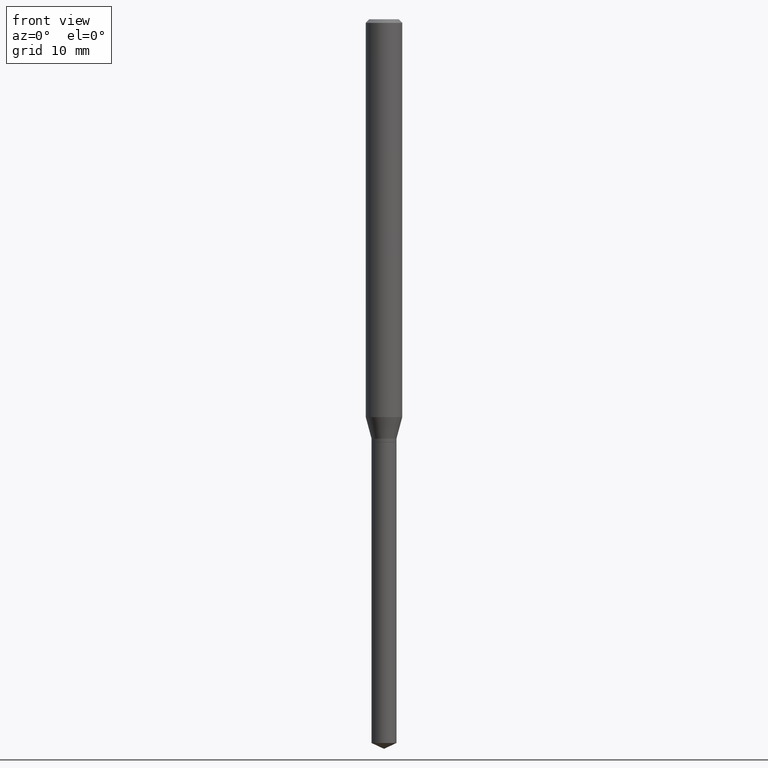
[diagram: clean part render]
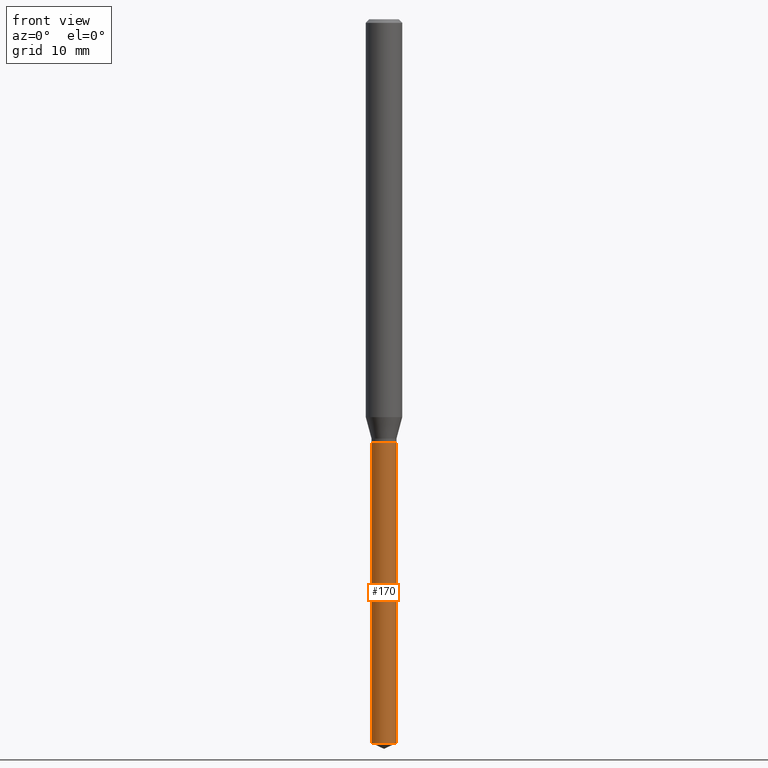
[diagram: same view with one face highlighted and labeled with its STEP entity id]
A machine part, front view. The second image highlights one B-rep face of the part: STEP entity #170.
In plain terms, the highlighted cylindrical surface (edge-blend (fillet) strip) has radius 1.0249 mm, axis along (-0, 0, 1).
Its self-contained STEP definition (entity closure, byte-faithful):
#54 = ORIENTED_EDGE ( 'NONE', *, *, #220, .F. ) ;
#67 = VECTOR ( 'NONE', #313, 39.37007874015748143 ) ;
#70 = DIRECTION ( 'NONE',  ( -2.445468806185136877E-29, 3.491481338843145188E-15, 1.000000000000000000 ) ) ;
#71 = CARTESIAN_POINT ( 'NONE',  ( 0.04034999999999999698, -5.065441126393635915E-15, -1.370100000000000318 ) ) ;
#73 = VERTEX_POINT ( 'NONE', #210 ) ;
#74 = CARTESIAN_POINT ( 'NONE',  ( 3.350536811354256393E-29, -4.783678582348994195E-15, -1.370100000000000318 ) ) ;
#85 = AXIS2_PLACEMENT_3D ( 'NONE', #265, #461, #270 ) ;
#93 = CARTESIAN_POINT ( 'NONE',  ( 0.04035000000000000392, -8.463645746625293434E-15, -2.343384485993445843 ) ) ;
#99 = ORIENTED_EDGE ( 'NONE', *, *, #365, .T. ) ;
#113 = CYLINDRICAL_SURFACE ( 'NONE', #283, 0.04034999999999999698 ) ;
#153 = FACE_OUTER_BOUND ( 'NONE', #438, .T. ) ;
#155 = CARTESIAN_POINT ( 'NONE',  ( 3.350536811354256393E-29, -4.783678582348994195E-15, -1.370100000000000318 ) ) ;
#166 = VERTEX_POINT ( 'NONE', #453 ) ;
#170 = ADVANCED_FACE ( 'NONE', ( #153 ), #113, .T. ) ;
#178 = VERTEX_POINT ( 'NONE', #486 ) ;
#193 = DIRECTION ( 'NONE',  ( 1.000000000000000000, -6.982962677686271444E-15, 0.000000000000000000 ) ) ;
#210 = CARTESIAN_POINT ( 'NONE',  ( -0.04035000000000000392, -7.895179208701451310E-15, -2.343384485993445843 ) ) ;
#218 = EDGE_CURVE ( 'NONE', #166, #178, #342, .T. ) ;
#220 = EDGE_CURVE ( 'NONE', #73, #166, #346, .T. ) ;
#226 = CIRCLE ( 'NONE', #85, 0.04034999999999999698 ) ;
#235 = DIRECTION ( 'NONE',  ( -2.445468806185136597E-29, 3.491481338843145583E-15, 1.000000000000000000 ) ) ;
#236 = EDGE_CURVE ( 'NONE', #73, #320, #226, .T. ) ;
#243 = ORIENTED_EDGE ( 'NONE', *, *, #236, .T. ) ;
#262 = DIRECTION ( 'NONE',  ( -2.445468806185136597E-29, 3.491481338843145583E-15, 1.000000000000000000 ) ) ;
#265 = CARTESIAN_POINT ( 'NONE',  ( 5.730673661395162448E-29, -8.181883202580652503E-15, -2.343384485993445843 ) ) ;
#266 = AXIS2_PLACEMENT_3D ( 'NONE', #74, #235, #193 ) ;
#270 = DIRECTION ( 'NONE',  ( 1.000000000000000000, -6.982962677686271444E-15, 0.000000000000000000 ) ) ;
#283 = AXIS2_PLACEMENT_3D ( 'NONE', #155, #262, #312 ) ;
#312 = DIRECTION ( 'NONE',  ( 1.000000000000000000, -6.982962677686271444E-15, 0.000000000000000000 ) ) ;
#313 = DIRECTION ( 'NONE',  ( -2.445468806185136877E-29, 3.491481338843145188E-15, 1.000000000000000000 ) ) ;
#320 = VERTEX_POINT ( 'NONE', #93 ) ;
#342 = CIRCLE ( 'NONE', #266, 0.04034999999999999698 ) ;
#346 = LINE ( 'NONE', #391, #403 ) ;
#365 = EDGE_CURVE ( 'NONE', #320, #178, #423, .T. ) ;
#366 = ORIENTED_EDGE ( 'NONE', *, *, #218, .F. ) ;
#391 = CARTESIAN_POINT ( 'NONE',  ( -0.04034999999999999698, -4.496974588469793791E-15, -1.370100000000000318 ) ) ;
#403 = VECTOR ( 'NONE', #70, 39.37007874015748143 ) ;
#423 = LINE ( 'NONE', #71, #67 ) ;
#438 = EDGE_LOOP ( 'NONE', ( #54, #243, #99, #366 ) ) ;
#453 = CARTESIAN_POINT ( 'NONE',  ( -0.04034999999999999698, -6.196076898585622156E-15, -1.370100000000000318 ) ) ;
#461 = DIRECTION ( 'NONE',  ( -2.445468806185136597E-29, 3.491481338843145583E-15, 1.000000000000000000 ) ) ;
#486 = CARTESIAN_POINT ( 'NONE',  ( 0.04034999999999999698, -5.065441126393635915E-15, -1.370100000000000318 ) ) ;